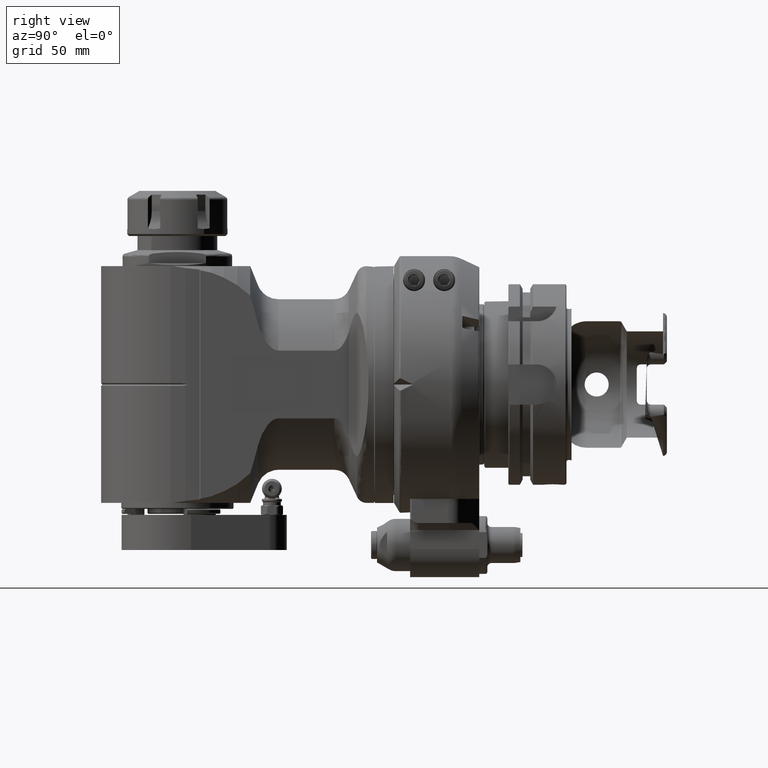
[diagram: clean part render]
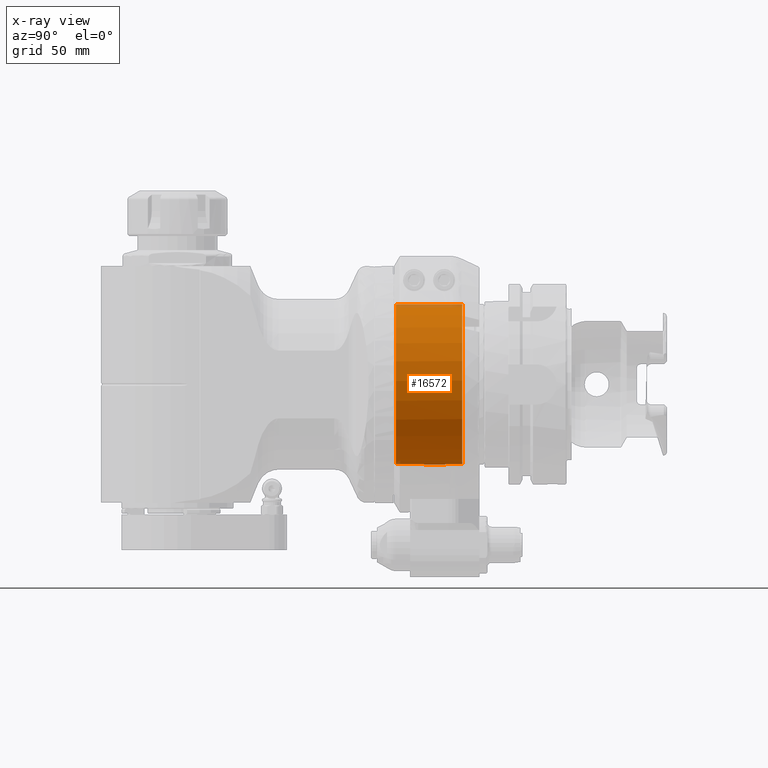
[diagram: x-ray — body ghosted, one internal face saturated and labeled with its STEP entity id]
A machine part, right view, then the same camera in x-ray: the body is ghosted and one INTERNAL B-rep face — a face not visible from any outside direction — is saturated and labeled: STEP entity #16572.
In plain terms, the highlighted cylindrical surface (partial cylindrical patch) has radius 40 mm, axis along (0, -1, 0).
Its self-contained STEP definition (entity closure, byte-faithful):
#1876=LINE('',#29777,#3057);
#1877=LINE('',#29780,#3058);
#1878=LINE('',#29784,#3059);
#1879=LINE('',#29788,#3060);
#3057=VECTOR('',#21915,8.499999538462);
#3058=VECTOR('',#21918,8.499999538462);
#3059=VECTOR('',#21921,32.99999976923);
#3060=VECTOR('',#21924,32.99999976923);
#3952=CIRCLE('',#18086,40.);
#3974=CIRCLE('',#18136,40.);
#3975=CIRCLE('',#18137,40.);
#3976=CIRCLE('',#18138,40.);
#4831=FACE_OUTER_BOUND('',#5862,.T.);
#5862=EDGE_LOOP('',(#14021,#14022,#14023,#14024,#14025,#14026,#14027,#14028));
#7684=VERTEX_POINT('',#28888);
#7685=VERTEX_POINT('',#28890);
#7723=VERTEX_POINT('',#29775);
#7724=VERTEX_POINT('',#29779);
#7725=VERTEX_POINT('',#29781);
#7726=VERTEX_POINT('',#29783);
#7727=VERTEX_POINT('',#29785);
#7728=VERTEX_POINT('',#29787);
#9850=EDGE_CURVE('',#7685,#7684,#3952,.T.);
#9920=EDGE_CURVE('',#7684,#7723,#1876,.T.);
#9921=EDGE_CURVE('',#7685,#7724,#1877,.T.);
#9922=EDGE_CURVE('',#7725,#7723,#3974,.T.);
#9923=EDGE_CURVE('',#7725,#7726,#1878,.T.);
#9924=EDGE_CURVE('',#7727,#7726,#3975,.T.);
#9925=EDGE_CURVE('',#7727,#7728,#1879,.T.);
#9926=EDGE_CURVE('',#7724,#7728,#3976,.T.);
#14021=ORIENTED_EDGE('',*,*,#9921,.F.);
#14022=ORIENTED_EDGE('',*,*,#9850,.T.);
#14023=ORIENTED_EDGE('',*,*,#9920,.T.);
#14024=ORIENTED_EDGE('',*,*,#9922,.F.);
#14025=ORIENTED_EDGE('',*,*,#9923,.T.);
#14026=ORIENTED_EDGE('',*,*,#9924,.F.);
#14027=ORIENTED_EDGE('',*,*,#9925,.T.);
#14028=ORIENTED_EDGE('',*,*,#9926,.F.);
#15903=CYLINDRICAL_SURFACE('',#18135,40.);
#16572=ADVANCED_FACE('',(#4831),#15903,.F.);
#18086=AXIS2_PLACEMENT_3D('',#28891,#21784,#21785);
#18135=AXIS2_PLACEMENT_3D('',#29778,#21916,#21917);
#18136=AXIS2_PLACEMENT_3D('',#29782,#21919,#21920);
#18137=AXIS2_PLACEMENT_3D('',#29786,#21922,#21923);
#18138=AXIS2_PLACEMENT_3D('',#29789,#21925,#21926);
#21784=DIRECTION('center_axis',(0.,1.,0.));
#21785=DIRECTION('ref_axis',(0.134146341463404,0.,-0.990961532589426));
#21915=DIRECTION('',(0.,1.,0.));
#21916=DIRECTION('center_axis',(0.,-1.,0.));
#21917=DIRECTION('ref_axis',(1.22464679914735E-16,0.,-1.));
#21918=DIRECTION('',(0.,1.,0.));
#21919=DIRECTION('center_axis',(0.,-1.,0.));
#21920=DIRECTION('ref_axis',(-0.0374999961538496,0.,0.999296627777989));
#21921=DIRECTION('',(0.,-1.,0.));
#21922=DIRECTION('center_axis',(0.,1.,0.));
#21923=DIRECTION('ref_axis',(0.,0.,-1.));
#21924=DIRECTION('',(0.,1.,0.));
#21925=DIRECTION('center_axis',(0.,-1.,0.));
#21926=DIRECTION('ref_axis',(0.134146341463404,0.,-0.990961532589426));
#28888=CARTESIAN_POINT('',(-5.365853658537,25.50000023077,-39.63846130358));
#28890=CARTESIAN_POINT('',(5.365853658536,25.50000023077,-39.63846130358));
#28891=CARTESIAN_POINT('Origin',(0.,25.50000023077,0.));
#29775=CARTESIAN_POINT('',(-5.365853658537,33.99999976923,-39.63846130358));
#29777=CARTESIAN_POINT('',(-5.365853658537,25.50000023077,-39.63846130358));
#29778=CARTESIAN_POINT('Origin',(0.,21.07692284615,0.));
#29779=CARTESIAN_POINT('',(5.365853658537,33.99999976923,-39.63846130358));
#29780=CARTESIAN_POINT('',(5.365853658537,25.50000023077,-39.63846130358));
#29781=CARTESIAN_POINT('',(-1.499999846154,33.99999976923,39.97186511112));
#29782=CARTESIAN_POINT('Origin',(0.,33.99999976923,0.));
#29783=CARTESIAN_POINT('',(-1.499999846154,1.,39.97186511112));
#29784=CARTESIAN_POINT('',(-1.499999846154,33.99999976923,39.97186511112));
#29785=CARTESIAN_POINT('',(1.499999846154,1.,39.97186511112));
#29786=CARTESIAN_POINT('Origin',(0.,1.,0.));
#29787=CARTESIAN_POINT('',(1.499999846154,33.99999976923,39.97186511112));
#29788=CARTESIAN_POINT('',(1.499999846154,1.,39.97186511112));
#29789=CARTESIAN_POINT('Origin',(0.,33.99999976923,0.));